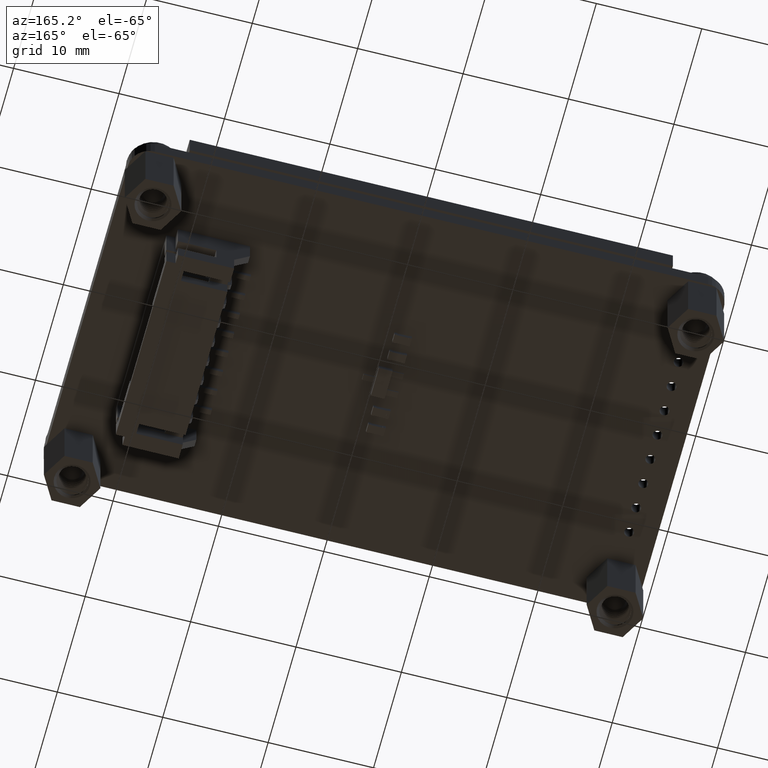
[diagram: clean part render]
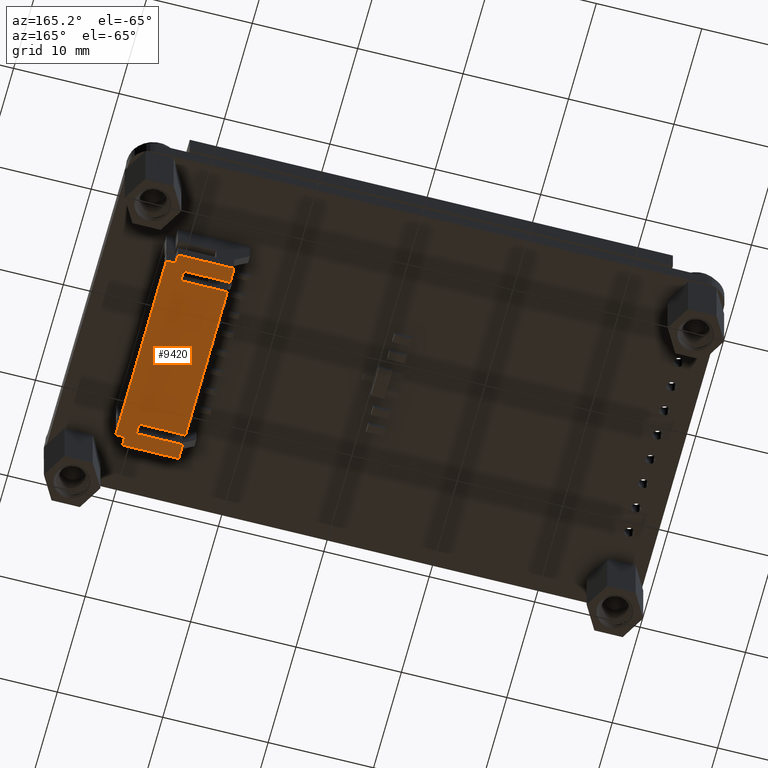
[diagram: same view with one face highlighted and labeled with its STEP entity id]
A machine part, auxiliary view. The second image highlights one B-rep face of the part: STEP entity #9420.
In plain terms, the highlighted planar face has unit normal (0, 0, -1).
Its self-contained STEP definition (entity closure, byte-faithful):
#6178=DIRECTION('',(-1.E0,0.E0,0.E0));
#6179=VECTOR('',#6178,8.656484441304E-1);
#6180=CARTESIAN_POINT('',(9.95E0,5.6E0,-8.656484441304E-1));
#6181=LINE('',#6180,#6179);
#6185=DIRECTION('',(0.E0,0.E0,-1.E0));
#6186=VECTOR('',#6185,8.656484441304E-1);
#6187=CARTESIAN_POINT('',(9.084351555870E0,5.6E0,0.E0));
#6188=LINE('',#6187,#6186);
#6192=DIRECTION('',(1.E0,0.E0,0.E0));
#6193=VECTOR('',#6192,1.816870311174E1);
#6194=CARTESIAN_POINT('',(-9.084351555870E0,5.6E0,0.E0));
#6195=LINE('',#6194,#6193);
#6199=DIRECTION('',(0.E0,0.E0,-1.E0));
#6200=VECTOR('',#6199,8.656484441304E-1);
#6201=CARTESIAN_POINT('',(-9.084351555870E0,5.6E0,0.E0));
#6202=LINE('',#6201,#6200);
#6206=DIRECTION('',(1.E0,0.E0,0.E0));
#6207=VECTOR('',#6206,8.656484441304E-1);
#6208=CARTESIAN_POINT('',(-9.95E0,5.6E0,-8.656484441304E-1));
#6209=LINE('',#6208,#6207);
#6213=DIRECTION('',(0.E0,0.E0,1.E0));
#6214=VECTOR('',#6213,5.334351555870E0);
#6215=CARTESIAN_POINT('',(-9.95E0,5.6E0,-6.2E0));
#6216=LINE('',#6215,#6214);
#6220=DIRECTION('',(-1.E0,0.E0,0.E0));
#6221=VECTOR('',#6220,1.45E0);
#6222=CARTESIAN_POINT('',(-8.5E0,5.6E0,-6.2E0));
#6223=LINE('',#6222,#6221);
#6227=DIRECTION('',(0.E0,0.E0,1.E0));
#6228=VECTOR('',#6227,4.4E0);
#6229=CARTESIAN_POINT('',(-8.5E0,5.6E0,-6.2E0));
#6230=LINE('',#6229,#6228);
#6234=DIRECTION('',(1.E0,0.E0,0.E0));
#6235=VECTOR('',#6234,1.E0);
#6236=CARTESIAN_POINT('',(-8.5E0,5.6E0,-1.8E0));
#6237=LINE('',#6236,#6235);
#6241=DIRECTION('',(0.E0,0.E0,1.E0));
#6242=VECTOR('',#6241,4.4E0);
#6243=CARTESIAN_POINT('',(-7.5E0,5.6E0,-6.2E0));
#6244=LINE('',#6243,#6242);
#6248=DIRECTION('',(-1.E0,0.E0,0.E0));
#6249=VECTOR('',#6248,1.5E1);
#6250=CARTESIAN_POINT('',(7.5E0,5.6E0,-6.2E0));
#6251=LINE('',#6250,#6249);
#6255=DIRECTION('',(0.E0,0.E0,1.E0));
#6256=VECTOR('',#6255,4.4E0);
#6257=CARTESIAN_POINT('',(7.5E0,5.6E0,-6.2E0));
#6258=LINE('',#6257,#6256);
#6262=DIRECTION('',(1.E0,0.E0,0.E0));
#6263=VECTOR('',#6262,1.E0);
#6264=CARTESIAN_POINT('',(7.5E0,5.6E0,-1.8E0));
#6265=LINE('',#6264,#6263);
#6269=DIRECTION('',(0.E0,0.E0,1.E0));
#6270=VECTOR('',#6269,4.4E0);
#6271=CARTESIAN_POINT('',(8.5E0,5.6E0,-6.2E0));
#6272=LINE('',#6271,#6270);
#6276=DIRECTION('',(-1.E0,0.E0,0.E0));
#6277=VECTOR('',#6276,1.45E0);
#6278=CARTESIAN_POINT('',(9.95E0,5.6E0,-6.2E0));
#6279=LINE('',#6278,#6277);
#6283=DIRECTION('',(0.E0,0.E0,-1.E0));
#6284=VECTOR('',#6283,5.334351555870E0);
#6285=CARTESIAN_POINT('',(9.95E0,5.6E0,-8.656484441304E-1));
#6286=LINE('',#6285,#6284);
#8560=CARTESIAN_POINT('',(-9.95E0,5.6E0,-6.2E0));
#8561=VERTEX_POINT('',#8560);
#8576=CARTESIAN_POINT('',(9.95E0,5.6E0,-6.2E0));
#8577=VERTEX_POINT('',#8576);
#8738=CARTESIAN_POINT('',(7.5E0,5.6E0,-6.2E0));
#8739=CARTESIAN_POINT('',(7.5E0,5.6E0,-1.8E0));
#8740=VERTEX_POINT('',#8738);
#8741=VERTEX_POINT('',#8739);
#8742=CARTESIAN_POINT('',(8.5E0,5.6E0,-1.8E0));
#8743=VERTEX_POINT('',#8742);
#8744=CARTESIAN_POINT('',(8.5E0,5.6E0,-6.2E0));
#8745=VERTEX_POINT('',#8744);
#8746=CARTESIAN_POINT('',(-8.5E0,5.6E0,-6.2E0));
#8747=CARTESIAN_POINT('',(-8.5E0,5.6E0,-1.8E0));
#8748=VERTEX_POINT('',#8746);
#8749=VERTEX_POINT('',#8747);
#8750=CARTESIAN_POINT('',(-7.5E0,5.6E0,-1.8E0));
#8751=VERTEX_POINT('',#8750);
#8752=CARTESIAN_POINT('',(-7.5E0,5.6E0,-6.2E0));
#8753=VERTEX_POINT('',#8752);
#8798=CARTESIAN_POINT('',(9.95E0,5.6E0,-8.656484441304E-1));
#8799=CARTESIAN_POINT('',(9.084351555870E0,5.6E0,-8.656484441304E-1));
#8800=VERTEX_POINT('',#8798);
#8801=VERTEX_POINT('',#8799);
#8802=CARTESIAN_POINT('',(9.084351555870E0,5.6E0,0.E0));
#8803=VERTEX_POINT('',#8802);
#8804=CARTESIAN_POINT('',(-9.084351555870E0,5.6E0,0.E0));
#8805=CARTESIAN_POINT('',(-9.084351555870E0,5.6E0,-8.656484441304E-1));
#8806=VERTEX_POINT('',#8804);
#8807=VERTEX_POINT('',#8805);
#8808=CARTESIAN_POINT('',(-9.95E0,5.6E0,-8.656484441304E-1));
#8809=VERTEX_POINT('',#8808);
#9385=CARTESIAN_POINT('',(0.E0,5.6E0,0.E0));
#9386=DIRECTION('',(0.E0,1.E0,0.E0));
#9387=DIRECTION('',(1.E0,0.E0,0.E0));
#9388=AXIS2_PLACEMENT_3D('',#9385,#9386,#9387);
#9389=PLANE('',#9388);
#9390=ORIENTED_EDGE('',*,*,#9141,.T.);
#9391=ORIENTED_EDGE('',*,*,#9197,.F.);
#9392=ORIENTED_EDGE('',*,*,#9261,.F.);
#9394=ORIENTED_EDGE('',*,*,#9393,.T.);
#9396=ORIENTED_EDGE('',*,*,#9395,.F.);
#9398=ORIENTED_EDGE('',*,*,#9397,.F.);
#9400=ORIENTED_EDGE('',*,*,#9399,.F.);
#9402=ORIENTED_EDGE('',*,*,#9401,.T.);
#9403=ORIENTED_EDGE('',*,*,#9372,.T.);
#9405=ORIENTED_EDGE('',*,*,#9404,.F.);
#9407=ORIENTED_EDGE('',*,*,#9406,.F.);
#9409=ORIENTED_EDGE('',*,*,#9408,.T.);
#9411=ORIENTED_EDGE('',*,*,#9410,.T.);
#9413=ORIENTED_EDGE('',*,*,#9412,.F.);
#9415=ORIENTED_EDGE('',*,*,#9414,.F.);
#9417=ORIENTED_EDGE('',*,*,#9416,.F.);
#9418=EDGE_LOOP('',(#9390,#9391,#9392,#9394,#9396,#9398,#9400,#9402,#9403,#9405,
#9407,#9409,#9411,#9413,#9415,#9417));
#9419=FACE_OUTER_BOUND('',#9418,.F.);
#9420=ADVANCED_FACE('',(#9419),#9389,.T.);
#9141=EDGE_CURVE('',#8800,#8801,#6181,.T.);
#9197=EDGE_CURVE('',#8803,#8801,#6188,.T.);
#9261=EDGE_CURVE('',#8806,#8803,#6195,.T.);
#9372=EDGE_CURVE('',#8749,#8751,#6237,.T.);
#9393=EDGE_CURVE('',#8806,#8807,#6202,.T.);
#9395=EDGE_CURVE('',#8809,#8807,#6209,.T.);
#9397=EDGE_CURVE('',#8561,#8809,#6216,.T.);
#9399=EDGE_CURVE('',#8748,#8561,#6223,.T.);
#9401=EDGE_CURVE('',#8748,#8749,#6230,.T.);
#9404=EDGE_CURVE('',#8753,#8751,#6244,.T.);
#9406=EDGE_CURVE('',#8740,#8753,#6251,.T.);
#9408=EDGE_CURVE('',#8740,#8741,#6258,.T.);
#9410=EDGE_CURVE('',#8741,#8743,#6265,.T.);
#9412=EDGE_CURVE('',#8745,#8743,#6272,.T.);
#9414=EDGE_CURVE('',#8577,#8745,#6279,.T.);
#9416=EDGE_CURVE('',#8800,#8577,#6286,.T.);